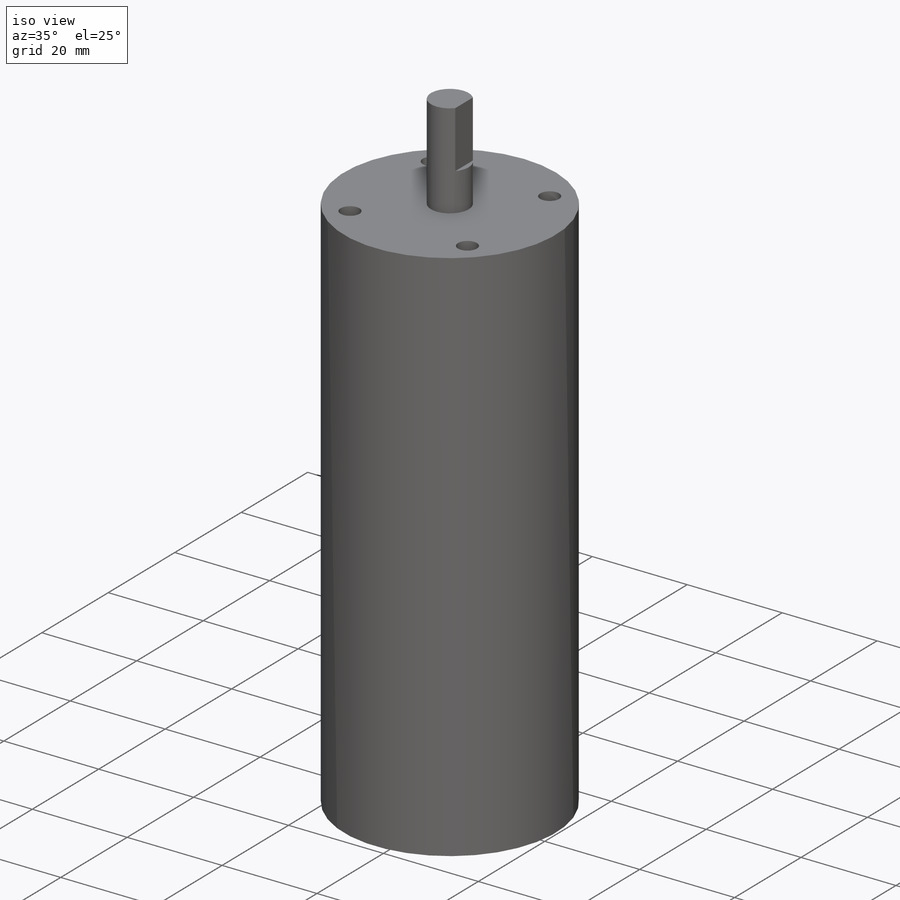
[diagram: iso view]
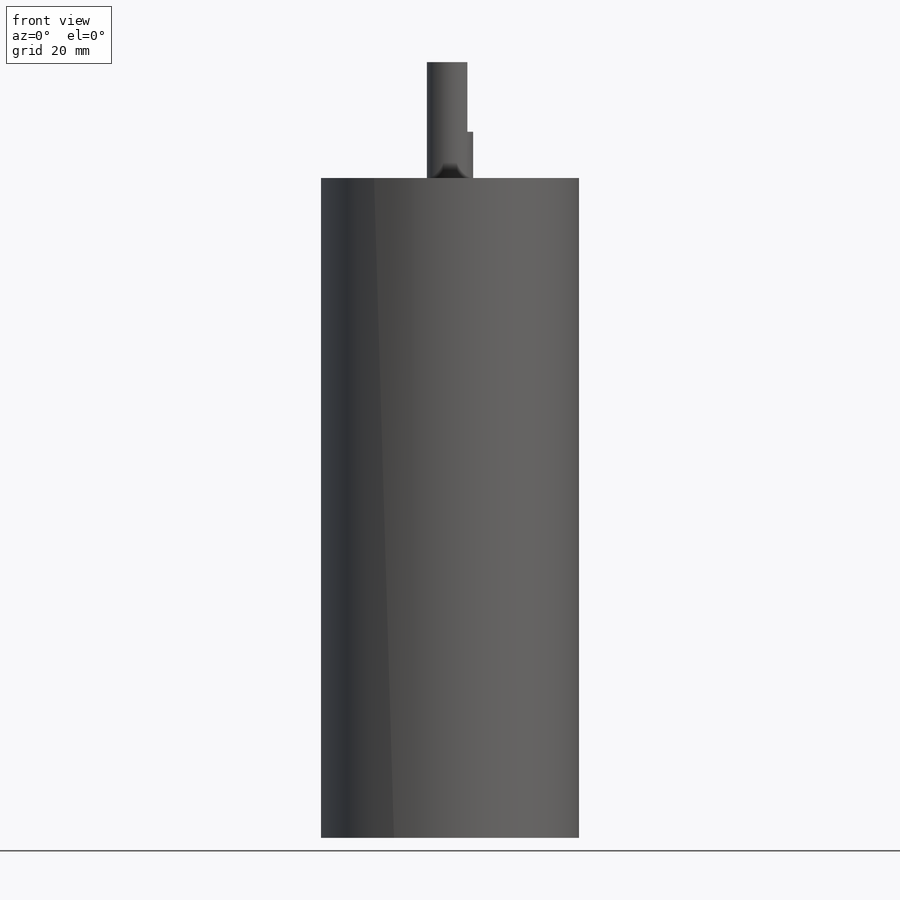
[diagram: front view]
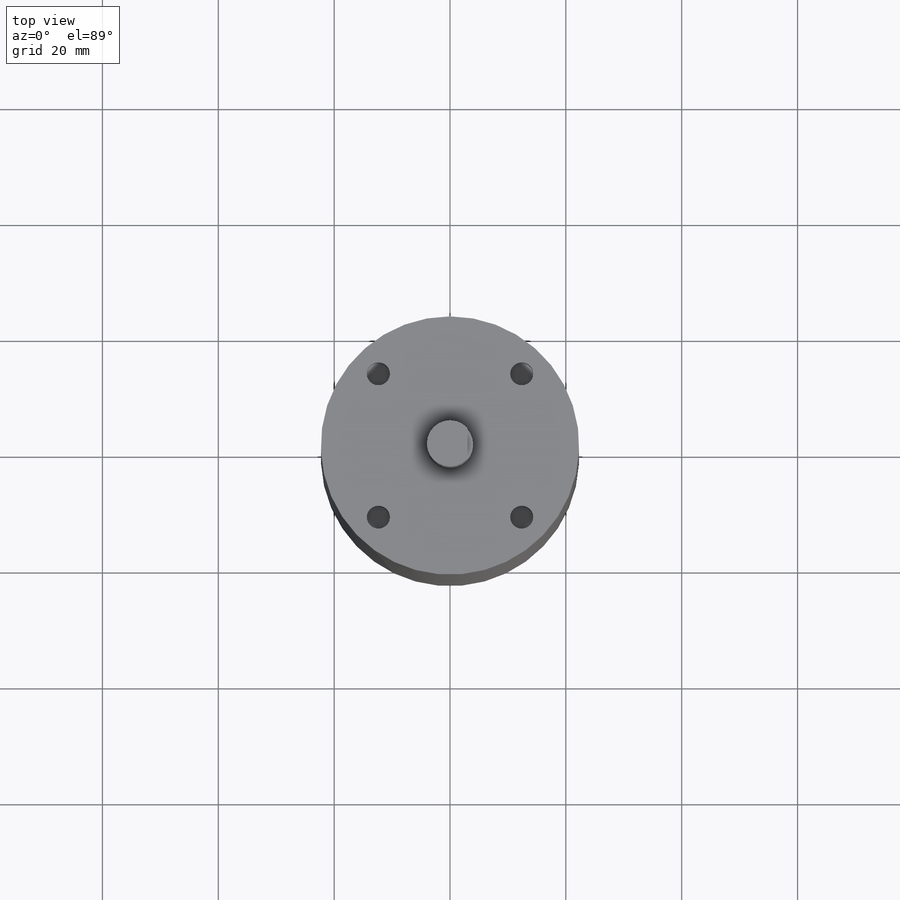
[diagram: top view]
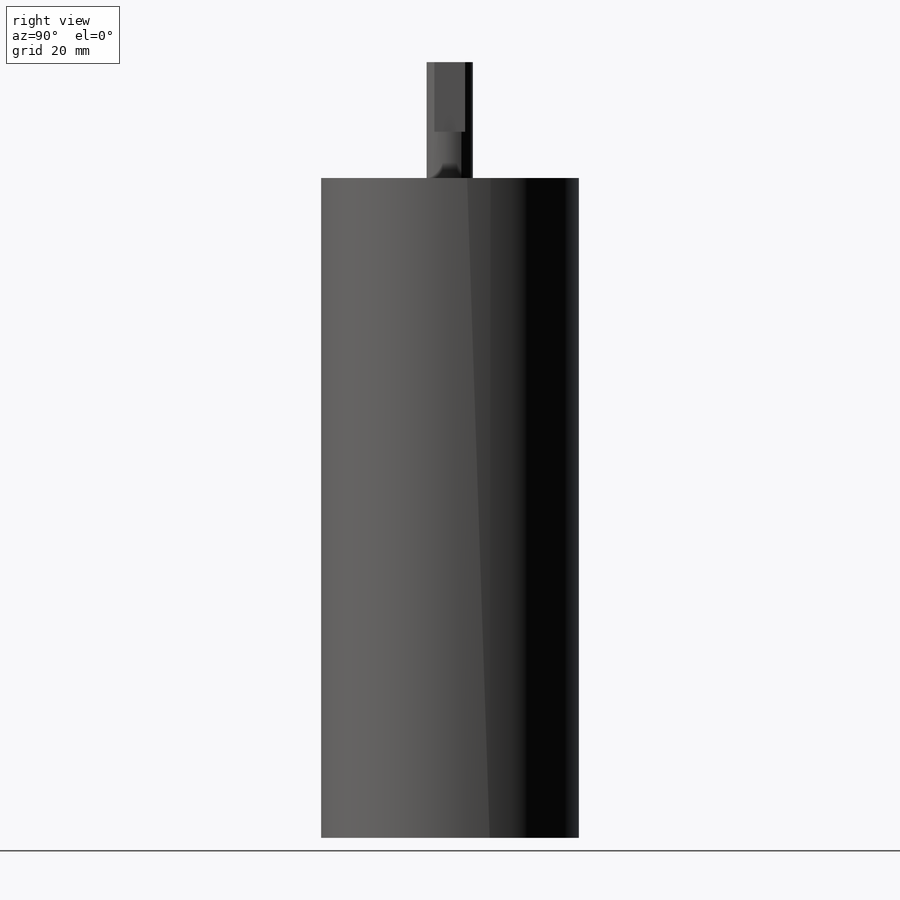
[diagram: right view]
SOLIDWORKS PART (.sldprt)
format: sldprt  version: not decoded by parser v0  size: 154,112 bytes
history: native  units: mm
features: sketch x3, cut_extrude x2, material x1, revolve x1 (+16 scaffold rows collapsed)
feature tree (23):
  scaffold x16  (default folders/planes/origin — collapsed)
  material  "Material <not specified>"
  sketch  "Sketch2"  dims[c1.D1=44.6mm c1.D2=15.0mm c1.D3=15.0mm c1.D4=113.9mm c1.D5=4.0mm c1.D6=4.0mm c1.D7=20.0mm c1.D8=5.0mm c1.D9=6.0mm c2.D2=20.0mm c2.D3=4.0mm]
  revolve  "Revolve1"  Angle=360deg
  sketch  "Sketch3"  dims[D1=1.0mm D2=12.0mm]
  cut_extrude  "Cut-Extrude1"  [1 undecoded]
  sketch  "Sketch4"  dims[c1.D1=35.0mm c1.D3=4.0mm c1.D2=35.0mm c2.D2=45.0deg]
  cut_extrude  "Cut-Extrude2"  Depth=10mm
decode coverage: 5 of 6 modeling features carry decoded parameters
note: 1 parameter value undecoded
note: suppression state not decoded; provenance and decode notes live in map.json
